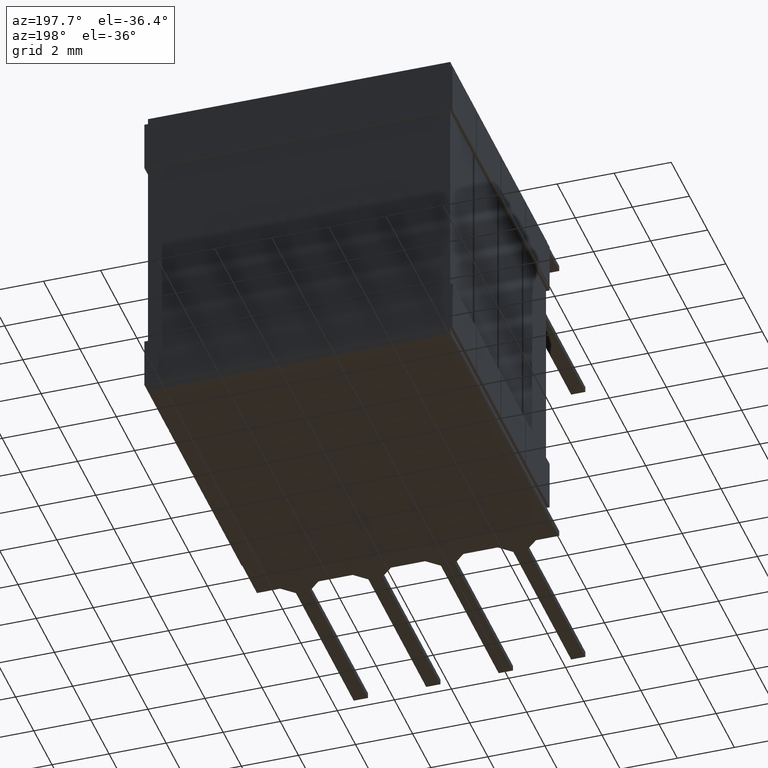
[diagram: clean part render]
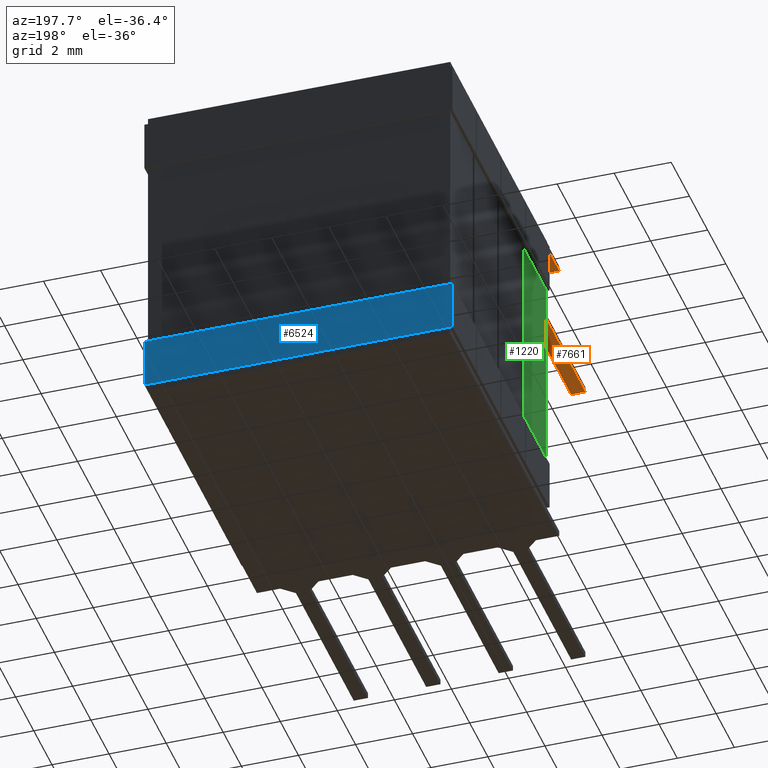
[diagram: same view with three faces highlighted in distinct colors, each labeled with its STEP entity id]
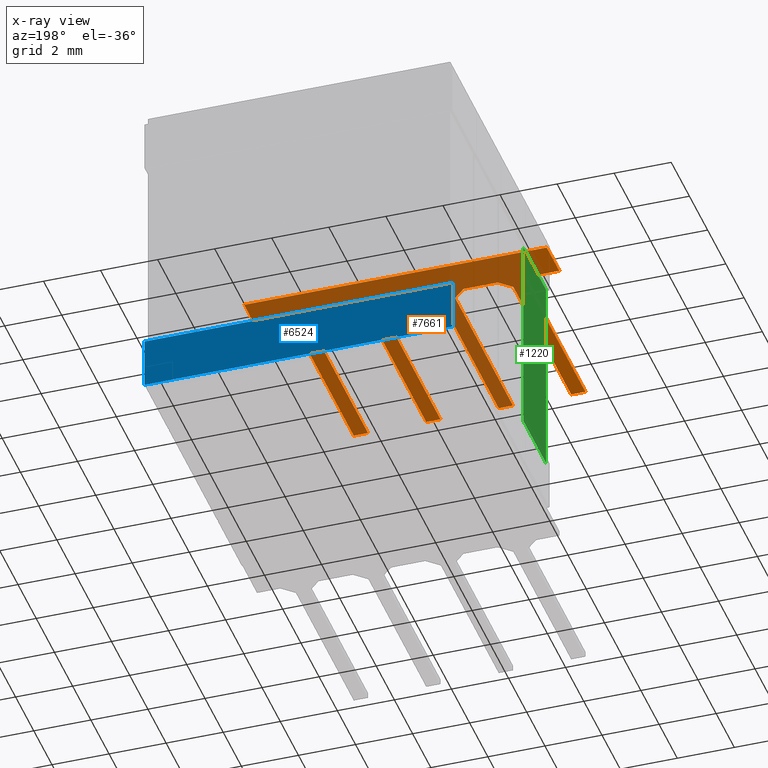
[diagram: x-ray of the same camera — body ghosted, the three highlighted faces saturated]
A machine part, auxiliary view with three faces highlighted in distinct colors.
The next image is the same camera in x-ray (body ghosted, the three faces saturated) — at least one of them is partly hidden behind the body in this view.
Their STEP definitions:

[orange] entity #7661 — the highlighted planar face has unit normal (-0, 0, -1).
#22 = VERTEX_POINT ( 'NONE', #8025 ) ;
#37 = LINE ( 'NONE', #4340, #5190 ) ;
#96 = DIRECTION ( 'NONE',  ( -1.980589795406591000E-014, -1.000000000000000000, 0.0000000000000000000 ) ) ;
#112 = VECTOR ( 'NONE', #3474, 1000.000000000000000 ) ;
#129 = CARTESIAN_POINT ( 'NONE',  ( 3.877499999999909800, -8.102999999999983800, 0.0000000000000000000 ) ) ;
#185 = CARTESIAN_POINT ( 'NONE',  ( 3.457500000000090600, -1.352999999999983300, 0.0000000000000000000 ) ) ;
#242 = EDGE_CURVE ( 'NONE', #5974, #5798, #7825, .T. ) ;
#268 = VECTOR ( 'NONE', #1432, 1000.000000000000000 ) ;
#269 = VERTEX_POINT ( 'NONE', #7627 ) ;
#283 = VECTOR ( 'NONE', #1068, 1000.000000000000000 ) ;
#317 = CARTESIAN_POINT ( 'NONE',  ( 4.377499999999854700, -1.752999999999969500, 0.0000000000000000000 ) ) ;
#366 = CARTESIAN_POINT ( 'NONE',  ( 8.537500000000406400, -1.352999999999983300, 0.0000000000000000000 ) ) ;
#443 = LINE ( 'NONE', #6430, #8243 ) ;
#591 = ORIENTED_EDGE ( 'NONE', *, *, #5850, .F. ) ;
#605 = ORIENTED_EDGE ( 'NONE', *, *, #4857, .F. ) ;
#733 = LINE ( 'NONE', #8004, #7417 ) ;
#740 = DIRECTION ( 'NONE',  ( 1.000000000000000000, -0.0000000000000000000, -0.0000000000000000000 ) ) ;
#785 = ORIENTED_EDGE ( 'NONE', *, *, #1645, .F. ) ;
#909 = CARTESIAN_POINT ( 'NONE',  ( 2.257499999999568200, -1.352999999999987300, 0.0000000000000000000 ) ) ;
#919 = LINE ( 'NONE', #5778, #4052 ) ;
#958 = CARTESIAN_POINT ( 'NONE',  ( 3.877499999999909800, -8.102999999999983800, 0.0000000000000000000 ) ) ;
#1001 = VERTEX_POINT ( 'NONE', #5799 ) ;
#1045 = VECTOR ( 'NONE', #2257, 1000.000000000000000 ) ;
#1068 = DIRECTION ( 'NONE',  ( 1.000000000000000000, 7.632783294298791800E-014, 0.0000000000000000000 ) ) ;
#1106 = VERTEX_POINT ( 'NONE', #4680 ) ;
#1126 = DIRECTION ( 'NONE',  ( -0.0000000000000000000, 0.0000000000000000000, -1.000000000000000000 ) ) ;
#1140 = DIRECTION ( 'NONE',  ( 0.0000000000000000000, 1.000000000000000000, 0.0000000000000000000 ) ) ;
#1142 = DIRECTION ( 'NONE',  ( 1.000000000000000000, 7.632783294298791800E-014, 0.0000000000000000000 ) ) ;
#1144 = DIRECTION ( 'NONE',  ( 0.7241379310342519500, 0.6896551724140355100, -0.0000000000000000000 ) ) ;
#1176 = LINE ( 'NONE', #4503, #6161 ) ;
#1223 = VECTOR ( 'NONE', #2314, 1000.000000000000000 ) ;
#1226 = DIRECTION ( 'NONE',  ( -1.980589795406591000E-014, -1.000000000000000000, 0.0000000000000000000 ) ) ;
#1324 = CARTESIAN_POINT ( 'NONE',  ( 3.877500000000035500, -1.752999999999983200, 0.0000000000000000000 ) ) ;
#1336 = CARTESIAN_POINT ( 'NONE',  ( 3.457500000000090600, -1.352999999999983300, 0.0000000000000000000 ) ) ;
#1342 = VERTEX_POINT ( 'NONE', #3673 ) ;
#1354 = LINE ( 'NONE', #958, #6639 ) ;
#1395 = LINE ( 'NONE', #2544, #4544 ) ;
#1432 = DIRECTION ( 'NONE',  ( -1.980589795406591000E-014, -1.000000000000000000, 0.0000000000000000000 ) ) ;
#1517 = CARTESIAN_POINT ( 'NONE',  ( 4.377499999999854700, -8.102999999999944700, 0.0000000000000000000 ) ) ;
#1537 = ORIENTED_EDGE ( 'NONE', *, *, #5759, .F. ) ;
#1574 = DIRECTION ( 'NONE',  ( 0.7241379310342518400, 0.6896551724140355100, -0.0000000000000000000 ) ) ;
#1582 = DIRECTION ( 'NONE',  ( 0.0000000000000000000, 1.000000000000000000, 0.0000000000000000000 ) ) ;
#1630 = LINE ( 'NONE', #185, #7415 ) ;
#1645 = EDGE_CURVE ( 'NONE', #5122, #1871, #5129, .T. ) ;
#1665 = CARTESIAN_POINT ( 'NONE',  ( 9.457500000000170100, -8.102999999999944700, 0.0000000000000000000 ) ) ;
#1691 = VERTEX_POINT ( 'NONE', #6976 ) ;
#1704 = ORIENTED_EDGE ( 'NONE', *, *, #7572, .F. ) ;
#1746 = LINE ( 'NONE', #3878, #3348 ) ;
#1750 = EDGE_CURVE ( 'NONE', #4129, #5974, #3504, .T. ) ;
#1757 = CARTESIAN_POINT ( 'NONE',  ( 4.797499999999573100, -1.352999999999969600, 0.0000000000000000000 ) ) ;
#1812 = DIRECTION ( 'NONE',  ( -1.000000000000000000, 0.0000000000000000000, 0.0000000000000000000 ) ) ;
#1854 = CARTESIAN_POINT ( 'NONE',  ( 0.09999999999997896700, 10.62000000000000100, 0.0000000000000000000 ) ) ;
#1871 = VERTEX_POINT ( 'NONE', #5124 ) ;
#1872 = CARTESIAN_POINT ( 'NONE',  ( 1.837499999999849600, -8.102999999999962500, 0.0000000000000000000 ) ) ;
#1896 = DIRECTION ( 'NONE',  ( 0.7241379310344374700, -0.6896551724138406700, -0.0000000000000000000 ) ) ;
#1994 = FACE_OUTER_BOUND ( 'NONE', #2192, .T. ) ;
#2032 = LINE ( 'NONE', #4198, #3142 ) ;
#2044 = VERTEX_POINT ( 'NONE', #3501 ) ;
#2069 = LINE ( 'NONE', #3637, #7955 ) ;
#2128 = EDGE_CURVE ( 'NONE', #3108, #7036, #1354, .T. ) ;
#2134 = VECTOR ( 'NONE', #6944, 1000.000000000000000 ) ;
#2147 = VECTOR ( 'NONE', #6991, 1000.000000000000000 ) ;
#2192 = EDGE_LOOP ( 'NONE', ( #6909, #3959, #591, #6535, #7242, #7419, #2974, #3018, #4427, #5818, #1537, #3359, #7890, #3466, #3305, #5090, #7797, #5647, #6228, #3098, #605, #5519, #785, #7149, #7856, #5180, #1704, #7154 ) ) ;
#2249 = LINE ( 'NONE', #1854, #2147 ) ;
#2257 = DIRECTION ( 'NONE',  ( 0.0000000000000000000, 1.000000000000000000, 0.0000000000000000000 ) ) ;
#2306 = DIRECTION ( 'NONE',  ( 1.000000000000000000, 7.632783294298791800E-014, 0.0000000000000000000 ) ) ;
#2314 = DIRECTION ( 'NONE',  ( 1.000000000000000000, -1.156482317317467100E-014, -0.0000000000000000000 ) ) ;
#2496 = VERTEX_POINT ( 'NONE', #5794 ) ;
#2499 = VECTOR ( 'NONE', #1574, 1000.000000000000100 ) ;
#2544 = CARTESIAN_POINT ( 'NONE',  ( 0.9175000000000840300, -1.353000000000000600, 0.0000000000000000000 ) ) ;
#2599 = VECTOR ( 'NONE', #2689, 999.9999999999998900 ) ;
#2683 = DIRECTION ( 'NONE',  ( 0.7241379310344374700, -0.6896551724138406700, -0.0000000000000000000 ) ) ;
#2689 = DIRECTION ( 'NONE',  ( 0.7241379310344385800, -0.6896551724138395600, -0.0000000000000000000 ) ) ;
#2775 = DIRECTION ( 'NONE',  ( 1.000000000000000000, -1.445602896646771400E-014, -0.0000000000000000000 ) ) ;
#2878 = EDGE_CURVE ( 'NONE', #7699, #5122, #37, .T. ) ;
#2902 = CARTESIAN_POINT ( 'NONE',  ( 6.417500000000193200, -1.752999999999983200, 0.0000000000000000000 ) ) ;
#2974 = ORIENTED_EDGE ( 'NONE', *, *, #5095, .F. ) ;
#3018 = ORIENTED_EDGE ( 'NONE', *, *, #3602, .F. ) ;
#3098 = ORIENTED_EDGE ( 'NONE', *, *, #3398, .F. ) ;
#3106 = CARTESIAN_POINT ( 'NONE',  ( 7.337499999999730300, -1.352999999999969600, 0.0000000000000000000 ) ) ;
#3108 = VERTEX_POINT ( 'NONE', #129 ) ;
#3113 = PLANE ( 'NONE',  #5368 ) ;
#3142 = VECTOR ( 'NONE', #4848, 1000.000000000000000 ) ;
#3191 = CARTESIAN_POINT ( 'NONE',  ( 1.337500000000030600, -1.753000000000001000, 0.0000000000000000000 ) ) ;
#3297 = VERTEX_POINT ( 'NONE', #6306 ) ;
#3305 = ORIENTED_EDGE ( 'NONE', *, *, #6751, .F. ) ;
#3335 = LINE ( 'NONE', #5644, #5071 ) ;
#3344 = LINE ( 'NONE', #366, #1223 ) ;
#3348 = VECTOR ( 'NONE', #5170, 1000.000000000000000 ) ;
#3354 = CARTESIAN_POINT ( 'NONE',  ( 6.917500000000012000, -8.102999999999944700, 0.0000000000000000000 ) ) ;
#3359 = ORIENTED_EDGE ( 'NONE', *, *, #3536, .F. ) ;
#3398 = EDGE_CURVE ( 'NONE', #1691, #3108, #7724, .T. ) ;
#3466 = ORIENTED_EDGE ( 'NONE', *, *, #7476, .F. ) ;
#3468 = VERTEX_POINT ( 'NONE', #4558 ) ;
#3472 = CARTESIAN_POINT ( 'NONE',  ( 9.457500000000170100, -1.752999999999969500, 0.0000000000000000000 ) ) ;
#3474 = DIRECTION ( 'NONE',  ( 0.7241379310344374700, -0.6896551724138406700, -0.0000000000000000000 ) ) ;
#3477 = EDGE_CURVE ( 'NONE', #5497, #6760, #7300, .T. ) ;
#3480 = VERTEX_POINT ( 'NONE', #8394 ) ;
#3501 = CARTESIAN_POINT ( 'NONE',  ( 6.417500000000193200, -1.752999999999983200, 0.0000000000000000000 ) ) ;
#3504 = LINE ( 'NONE', #1757, #4810 ) ;
#3536 = EDGE_CURVE ( 'NONE', #3297, #1001, #6097, .T. ) ;
#3602 = EDGE_CURVE ( 'NONE', #3480, #3468, #2032, .T. ) ;
#3637 = CARTESIAN_POINT ( 'NONE',  ( 9.877499999999903600, -1.352999999999955600, 0.0000000000000000000 ) ) ;
#3657 = VECTOR ( 'NONE', #6011, 1000.000000000000000 ) ;
#3673 = CARTESIAN_POINT ( 'NONE',  ( 8.537500000000406400, -1.352999999999983300, 0.0000000000000000000 ) ) ;
#3691 = VERTEX_POINT ( 'NONE', #3472 ) ;
#3769 = EDGE_CURVE ( 'NONE', #7772, #22, #443, .T. ) ;
#3782 = EDGE_CURVE ( 'NONE', #5497, #6805, #2249, .T. ) ;
#3848 = VECTOR ( 'NONE', #1582, 1000.000000000000000 ) ;
#3878 = CARTESIAN_POINT ( 'NONE',  ( 10.69500000000000600, 10.62000000000000100, 0.0000000000000000000 ) ) ;
#3959 = ORIENTED_EDGE ( 'NONE', *, *, #3477, .T. ) ;
#3989 = EDGE_CURVE ( 'NONE', #1106, #2496, #733, .T. ) ;
#4052 = VECTOR ( 'NONE', #7751, 1000.000000000000000 ) ;
#4106 = DIRECTION ( 'NONE',  ( 1.000000000000000000, -4.243971806670481500E-015, 0.0000000000000000000 ) ) ;
#4129 = VERTEX_POINT ( 'NONE', #317 ) ;
#4139 = CARTESIAN_POINT ( 'NONE',  ( 0.09999999999999760500, 0.02500000000000000100, 0.0000000000000000000 ) ) ;
#4178 = CARTESIAN_POINT ( 'NONE',  ( 0.1000000000000000100, -1.352999999999990200, 0.0000000000000000000 ) ) ;
#4198 = CARTESIAN_POINT ( 'NONE',  ( 8.957500000000351300, -1.752999999999983200, 0.0000000000000000000 ) ) ;
#4234 = LINE ( 'NONE', #7393, #3848 ) ;
#4302 = CARTESIAN_POINT ( 'NONE',  ( 6.417500000000067000, -8.102999999999983800, 0.0000000000000000000 ) ) ;
#4340 = CARTESIAN_POINT ( 'NONE',  ( 1.837499999999849600, -8.102999999999962500, 0.0000000000000000000 ) ) ;
#4374 = LINE ( 'NONE', #6603, #5273 ) ;
#4384 = CARTESIAN_POINT ( 'NONE',  ( 5.997500000000248300, -1.352999999999983300, 0.0000000000000000000 ) ) ;
#4427 = ORIENTED_EDGE ( 'NONE', *, *, #7449, .F. ) ;
#4434 = CARTESIAN_POINT ( 'NONE',  ( 4.797499999999573100, -1.352999999999969600, 0.0000000000000000000 ) ) ;
#4503 = CARTESIAN_POINT ( 'NONE',  ( 8.957500000000351300, -1.752999999999983200, 0.0000000000000000000 ) ) ;
#4544 = VECTOR ( 'NONE', #8336, 1000.000000000000000 ) ;
#4558 = CARTESIAN_POINT ( 'NONE',  ( 8.957500000000225200, -8.102999999999983800, 0.0000000000000000000 ) ) ;
#4591 = EDGE_CURVE ( 'NONE', #4901, #1342, #3344, .T. ) ;
#4680 = CARTESIAN_POINT ( 'NONE',  ( 9.877499999999903600, -1.352999999999955600, 0.0000000000000000000 ) ) ;
#4693 = LINE ( 'NONE', #1665, #1045 ) ;
#4810 = VECTOR ( 'NONE', #4916, 1000.000000000000100 ) ;
#4848 = DIRECTION ( 'NONE',  ( -1.966930555438269700E-014, -1.000000000000000000, 0.0000000000000000000 ) ) ;
#4857 = EDGE_CURVE ( 'NONE', #6103, #1691, #4374, .T. ) ;
#4901 = VERTEX_POINT ( 'NONE', #7266 ) ;
#4916 = DIRECTION ( 'NONE',  ( 0.7241379310342518400, 0.6896551724140355100, -0.0000000000000000000 ) ) ;
#4934 = CARTESIAN_POINT ( 'NONE',  ( 6.417500000000067000, -8.102999999999983800, 0.0000000000000000000 ) ) ;
#5071 = VECTOR ( 'NONE', #1142, 1000.000000000000000 ) ;
#5090 = ORIENTED_EDGE ( 'NONE', *, *, #242, .F. ) ;
#5095 = EDGE_CURVE ( 'NONE', #3468, #269, #3335, .T. ) ;
#5122 = VERTEX_POINT ( 'NONE', #8328 ) ;
#5124 = CARTESIAN_POINT ( 'NONE',  ( 2.257499999999568200, -1.352999999999987300, 0.0000000000000000000 ) ) ;
#5129 = LINE ( 'NONE', #909, #2499 ) ;
#5170 = DIRECTION ( 'NONE',  ( -1.303976554229626400E-015, 1.000000000000000000, -0.0000000000000000000 ) ) ;
#5180 = ORIENTED_EDGE ( 'NONE', *, *, #3769, .F. ) ;
#5190 = VECTOR ( 'NONE', #1140, 1000.000000000000000 ) ;
#5233 = CARTESIAN_POINT ( 'NONE',  ( 0.0000000000000000000, 0.02500000000000000100, 0.0000000000000000000 ) ) ;
#5250 = CARTESIAN_POINT ( 'NONE',  ( 1.337500000000030600, -1.753000000000001000, 0.0000000000000000000 ) ) ;
#5273 = VECTOR ( 'NONE', #2683, 1000.000000000000000 ) ;
#5281 = LINE ( 'NONE', #3106, #5689 ) ;
#5368 = AXIS2_PLACEMENT_3D ( 'NONE', #5739, #1126, #1812 ) ;
#5497 = VERTEX_POINT ( 'NONE', #4139 ) ;
#5519 = ORIENTED_EDGE ( 'NONE', *, *, #6261, .F. ) ;
#5564 = EDGE_CURVE ( 'NONE', #7036, #4129, #4234, .T. ) ;
#5626 = CARTESIAN_POINT ( 'NONE',  ( 5.997500000000248300, -1.352999999999983300, 0.0000000000000000000 ) ) ;
#5644 = CARTESIAN_POINT ( 'NONE',  ( 8.957500000000225200, -8.102999999999983800, 0.0000000000000000000 ) ) ;
#5647 = ORIENTED_EDGE ( 'NONE', *, *, #5564, .F. ) ;
#5689 = VECTOR ( 'NONE', #7624, 1000.000000000000100 ) ;
#5711 = EDGE_CURVE ( 'NONE', #6805, #6778, #1395, .T. ) ;
#5739 = CARTESIAN_POINT ( 'NONE',  ( 0.0000000000000000000, 0.0000000000000000000, 0.0000000000000000000 ) ) ;
#5759 = EDGE_CURVE ( 'NONE', #1001, #4901, #5281, .T. ) ;
#5778 = CARTESIAN_POINT ( 'NONE',  ( 1.337499999999904700, -8.103000000000001500, 0.0000000000000000000 ) ) ;
#5794 = CARTESIAN_POINT ( 'NONE',  ( 10.69500000000002000, -1.352999999999959100, 0.0000000000000000000 ) ) ;
#5798 = VERTEX_POINT ( 'NONE', #4384 ) ;
#5799 = CARTESIAN_POINT ( 'NONE',  ( 6.917500000000012000, -1.752999999999969500, 0.0000000000000000000 ) ) ;
#5818 = ORIENTED_EDGE ( 'NONE', *, *, #4591, .F. ) ;
#5836 = LINE ( 'NONE', #7829, #268 ) ;
#5850 = EDGE_CURVE ( 'NONE', #2496, #6760, #1746, .T. ) ;
#5879 = VECTOR ( 'NONE', #96, 1000.000000000000000 ) ;
#5974 = VERTEX_POINT ( 'NONE', #4434 ) ;
#6011 = DIRECTION ( 'NONE',  ( 0.0000000000000000000, 1.000000000000000000, 0.0000000000000000000 ) ) ;
#6093 = LINE ( 'NONE', #2902, #112 ) ;
#6097 = LINE ( 'NONE', #3354, #3657 ) ;
#6103 = VERTEX_POINT ( 'NONE', #1336 ) ;
#6161 = VECTOR ( 'NONE', #1896, 1000.000000000000000 ) ;
#6228 = ORIENTED_EDGE ( 'NONE', *, *, #2128, .F. ) ;
#6261 = EDGE_CURVE ( 'NONE', #1871, #6103, #1630, .T. ) ;
#6306 = CARTESIAN_POINT ( 'NONE',  ( 6.917500000000012000, -8.102999999999944700, 0.0000000000000000000 ) ) ;
#6430 = CARTESIAN_POINT ( 'NONE',  ( 1.337500000000030600, -1.753000000000001000, 0.0000000000000000000 ) ) ;
#6535 = ORIENTED_EDGE ( 'NONE', *, *, #3989, .F. ) ;
#6597 = EDGE_CURVE ( 'NONE', #22, #7699, #919, .T. ) ;
#6603 = CARTESIAN_POINT ( 'NONE',  ( 3.877500000000035500, -1.752999999999983200, 0.0000000000000000000 ) ) ;
#6639 = VECTOR ( 'NONE', #2306, 1000.000000000000000 ) ;
#6663 = LINE ( 'NONE', #5250, #2599 ) ;
#6685 = CARTESIAN_POINT ( 'NONE',  ( 0.9175000000000840300, -1.353000000000000600, 0.0000000000000000000 ) ) ;
#6751 = EDGE_CURVE ( 'NONE', #5798, #2044, #6093, .T. ) ;
#6760 = VERTEX_POINT ( 'NONE', #7248 ) ;
#6778 = VERTEX_POINT ( 'NONE', #6685 ) ;
#6805 = VERTEX_POINT ( 'NONE', #4178 ) ;
#6875 = LINE ( 'NONE', #4302, #283 ) ;
#6909 = ORIENTED_EDGE ( 'NONE', *, *, #3782, .F. ) ;
#6944 = DIRECTION ( 'NONE',  ( 1.000000000000000000, -2.312964634634830700E-014, -0.0000000000000000000 ) ) ;
#6957 = VERTEX_POINT ( 'NONE', #4934 ) ;
#6976 = CARTESIAN_POINT ( 'NONE',  ( 3.877500000000035500, -1.752999999999983200, 0.0000000000000000000 ) ) ;
#6991 = DIRECTION ( 'NONE',  ( 1.756746191114908800E-015, -1.000000000000000000, 0.0000000000000000000 ) ) ;
#7036 = VERTEX_POINT ( 'NONE', #1517 ) ;
#7149 = ORIENTED_EDGE ( 'NONE', *, *, #2878, .F. ) ;
#7154 = ORIENTED_EDGE ( 'NONE', *, *, #5711, .F. ) ;
#7187 = EDGE_CURVE ( 'NONE', #6957, #3297, #6875, .T. ) ;
#7242 = ORIENTED_EDGE ( 'NONE', *, *, #8339, .F. ) ;
#7248 = CARTESIAN_POINT ( 'NONE',  ( 10.69500000000001800, 0.02500000000000000100, 0.0000000000000000000 ) ) ;
#7266 = CARTESIAN_POINT ( 'NONE',  ( 7.337499999999730300, -1.352999999999969600, 0.0000000000000000000 ) ) ;
#7300 = LINE ( 'NONE', #5233, #8225 ) ;
#7393 = CARTESIAN_POINT ( 'NONE',  ( 4.377499999999854700, -8.102999999999944700, 0.0000000000000000000 ) ) ;
#7415 = VECTOR ( 'NONE', #2775, 1000.000000000000000 ) ;
#7417 = VECTOR ( 'NONE', #4106, 1000.000000000000000 ) ;
#7419 = ORIENTED_EDGE ( 'NONE', *, *, #8312, .F. ) ;
#7449 = EDGE_CURVE ( 'NONE', #1342, #3480, #1176, .T. ) ;
#7476 = EDGE_CURVE ( 'NONE', #2044, #6957, #5836, .T. ) ;
#7572 = EDGE_CURVE ( 'NONE', #6778, #7772, #6663, .T. ) ;
#7624 = DIRECTION ( 'NONE',  ( 0.7241379310342518400, 0.6896551724140355100, -0.0000000000000000000 ) ) ;
#7627 = CARTESIAN_POINT ( 'NONE',  ( 9.457500000000170100, -8.102999999999944700, 0.0000000000000000000 ) ) ;
#7661 = ADVANCED_FACE ( 'NONE', ( #1994 ), #3113, .T. ) ;
#7699 = VERTEX_POINT ( 'NONE', #1872 ) ;
#7724 = LINE ( 'NONE', #1324, #5879 ) ;
#7751 = DIRECTION ( 'NONE',  ( 1.000000000000000000, 7.632783294298791800E-014, 0.0000000000000000000 ) ) ;
#7772 = VERTEX_POINT ( 'NONE', #3191 ) ;
#7797 = ORIENTED_EDGE ( 'NONE', *, *, #1750, .F. ) ;
#7825 = LINE ( 'NONE', #5626, #2134 ) ;
#7829 = CARTESIAN_POINT ( 'NONE',  ( 6.417500000000193200, -1.752999999999983200, 0.0000000000000000000 ) ) ;
#7856 = ORIENTED_EDGE ( 'NONE', *, *, #6597, .F. ) ;
#7890 = ORIENTED_EDGE ( 'NONE', *, *, #7187, .F. ) ;
#7955 = VECTOR ( 'NONE', #1144, 999.9999999999998900 ) ;
#8004 = CARTESIAN_POINT ( 'NONE',  ( 9.877499999999903600, -1.352999999999955600, 0.0000000000000000000 ) ) ;
#8025 = CARTESIAN_POINT ( 'NONE',  ( 1.337499999999904700, -8.103000000000001500, 0.0000000000000000000 ) ) ;
#8225 = VECTOR ( 'NONE', #740, 1000.000000000000000 ) ;
#8243 = VECTOR ( 'NONE', #1226, 1000.000000000000000 ) ;
#8312 = EDGE_CURVE ( 'NONE', #269, #3691, #4693, .T. ) ;
#8328 = CARTESIAN_POINT ( 'NONE',  ( 1.837499999999849600, -1.752999999999987200, 0.0000000000000000000 ) ) ;
#8336 = DIRECTION ( 'NONE',  ( 1.000000000000000000, -1.273191542001195500E-014, -0.0000000000000000000 ) ) ;
#8339 = EDGE_CURVE ( 'NONE', #3691, #1106, #2069, .T. ) ;
#8394 = CARTESIAN_POINT ( 'NONE',  ( 8.957500000000351300, -1.752999999999983200, 0.0000000000000000000 ) ) ;

[blue] entity #6524 — the highlighted planar face has unit normal (0, -1, 0).
#636 = EDGE_CURVE ( 'NONE', #4278, #3919, #2539, .T. ) ;
#1367 = EDGE_CURVE ( 'NONE', #4332, #5521, #5066, .T. ) ;
#1717 = VECTOR ( 'NONE', #5492, 1000.000000000000000 ) ;
#1723 = VECTOR ( 'NONE', #3764, 1000.000000000000000 ) ;
#1725 = CARTESIAN_POINT ( 'NONE',  ( 0.0000000000000000000, 10.69504084188069500, -8.995000000463351200 ) ) ;
#1972 = CARTESIAN_POINT ( 'NONE',  ( 10.79500000000000000, 10.69504084188069500, -8.995000000463351200 ) ) ;
#1988 = AXIS2_PLACEMENT_3D ( 'NONE', #8396, #7804, #8374 ) ;
#2237 = LINE ( 'NONE', #4833, #5277 ) ;
#2539 = LINE ( 'NONE', #3487, #1717 ) ;
#2697 = DIRECTION ( 'NONE',  ( 0.0000000000000000000, -2.268993371951541100E-005, -0.9999999997425834700 ) ) ;
#2860 = DIRECTION ( 'NONE',  ( 0.0000000000000000000, -2.268993371951541100E-005, -0.9999999997425834700 ) ) ;
#3105 = CARTESIAN_POINT ( 'NONE',  ( 0.0000000000000000000, 10.69504084188069500, -8.995000000463351200 ) ) ;
#3277 = PLANE ( 'NONE',  #1988 ) ;
#3487 = CARTESIAN_POINT ( 'NONE',  ( 0.0000000000000000000, 10.69500000000000000, -10.79500000000000000 ) ) ;
#3764 = DIRECTION ( 'NONE',  ( 1.000000000000000000, -0.0000000000000000000, -0.0000000000000000000 ) ) ;
#3919 = VERTEX_POINT ( 'NONE', #7870 ) ;
#4000 = ORIENTED_EDGE ( 'NONE', *, *, #6185, .T. ) ;
#4125 = ORIENTED_EDGE ( 'NONE', *, *, #1367, .T. ) ;
#4135 = EDGE_CURVE ( 'NONE', #4332, #4278, #2237, .T. ) ;
#4278 = VERTEX_POINT ( 'NONE', #4977 ) ;
#4332 = VERTEX_POINT ( 'NONE', #1725 ) ;
#4487 = ORIENTED_EDGE ( 'NONE', *, *, #4135, .F. ) ;
#4833 = CARTESIAN_POINT ( 'NONE',  ( 0.0000000000000000000, 10.69504084188069500, -8.995000000463351200 ) ) ;
#4977 = CARTESIAN_POINT ( 'NONE',  ( 0.0000000000000000000, 10.69500000000000000, -10.79500000000000000 ) ) ;
#5066 = LINE ( 'NONE', #3105, #1723 ) ;
#5175 = FACE_OUTER_BOUND ( 'NONE', #7400, .T. ) ;
#5277 = VECTOR ( 'NONE', #2860, 1000.000000000000100 ) ;
#5492 = DIRECTION ( 'NONE',  ( 1.000000000000000000, -0.0000000000000000000, -0.0000000000000000000 ) ) ;
#5521 = VERTEX_POINT ( 'NONE', #6193 ) ;
#6185 = EDGE_CURVE ( 'NONE', #5521, #3919, #8011, .T. ) ;
#6193 = CARTESIAN_POINT ( 'NONE',  ( 10.79500000000000000, 10.69504084188069500, -8.995000000463351200 ) ) ;
#6524 = ADVANCED_FACE ( 'NONE', ( #5175 ), #3277, .F. ) ;
#7071 = ORIENTED_EDGE ( 'NONE', *, *, #636, .F. ) ;
#7400 = EDGE_LOOP ( 'NONE', ( #4000, #7071, #4487, #4125 ) ) ;
#7644 = VECTOR ( 'NONE', #2697, 1000.000000000000100 ) ;
#7804 = DIRECTION ( 'NONE',  ( 0.0000000000000000000, -0.9999999997425834700, 2.268993371951541100E-005 ) ) ;
#7870 = CARTESIAN_POINT ( 'NONE',  ( 10.79500000000000000, 10.69500000000000000, -10.79500000000000000 ) ) ;
#8011 = LINE ( 'NONE', #1972, #7644 ) ;
#8374 = DIRECTION ( 'NONE',  ( 0.0000000000000000000, -2.268993371951541100E-005, -0.9999999997425834700 ) ) ;
#8396 = CARTESIAN_POINT ( 'NONE',  ( 0.0000000000000000000, 10.69504084188069500, -8.995000000463351200 ) ) ;

[green] entity #1220 — the highlighted planar face has unit normal (-1, 0, 0).
#86 = VERTEX_POINT ( 'NONE', #1038 ) ;
#216 = VECTOR ( 'NONE', #654, 1000.000000000000000 ) ;
#355 = ORIENTED_EDGE ( 'NONE', *, *, #2235, .F. ) ;
#420 = LINE ( 'NONE', #3970, #2943 ) ;
#499 = VERTEX_POINT ( 'NONE', #6959 ) ;
#548 = DIRECTION ( 'NONE',  ( 0.0000000000000000000, 1.000000000000000000, 1.648976688190881000E-016 ) ) ;
#630 = DIRECTION ( 'NONE',  ( -0.0000000000000000000, -1.000000000000000000, -1.236732516143160800E-016 ) ) ;
#654 = DIRECTION ( 'NONE',  ( 0.0000000000000000000, 3.616867737183134300E-016, -1.000000000000000000 ) ) ;
#1038 = CARTESIAN_POINT ( 'NONE',  ( 0.09999999999998265800, 2.572500000000002000, -8.995000000000001000 ) ) ;
#1147 = EDGE_CURVE ( 'NONE', #6627, #1772, #1415, .T. ) ;
#1220 = ADVANCED_FACE ( 'NONE', ( #7721 ), #1590, .T. ) ;
#1243 = CARTESIAN_POINT ( 'NONE',  ( 0.09999999999998265800, 0.0000000000000000000, 0.0000000000000000000 ) ) ;
#1415 = LINE ( 'NONE', #2894, #8129 ) ;
#1457 = CARTESIAN_POINT ( 'NONE',  ( 0.09999999999998265800, 2.647499999999997700, -1.799999998505076100 ) ) ;
#1590 = PLANE ( 'NONE',  #4242 ) ;
#1702 = LINE ( 'NONE', #4160, #4734 ) ;
#1772 = VERTEX_POINT ( 'NONE', #2402 ) ;
#1900 = DIRECTION ( 'NONE',  ( -1.000000000000000000, 0.0000000000000000000, 0.0000000000000000000 ) ) ;
#1932 = EDGE_LOOP ( 'NONE', ( #3493, #1996, #355, #5138, #6473, #2182 ) ) ;
#1996 = ORIENTED_EDGE ( 'NONE', *, *, #7741, .F. ) ;
#2117 = VERTEX_POINT ( 'NONE', #4656 ) ;
#2182 = ORIENTED_EDGE ( 'NONE', *, *, #7125, .T. ) ;
#2235 = EDGE_CURVE ( 'NONE', #499, #2117, #4405, .T. ) ;
#2330 = CARTESIAN_POINT ( 'NONE',  ( 0.09999999999998265800, 0.09999999999999872900, -1.799999998505077400 ) ) ;
#2402 = CARTESIAN_POINT ( 'NONE',  ( 0.09999999999998265800, 2.647499999999997700, -1.800694310536910600 ) ) ;
#2894 = CARTESIAN_POINT ( 'NONE',  ( 0.09999999999998265800, 2.647499999999997700, -1.800694310536910600 ) ) ;
#2943 = VECTOR ( 'NONE', #630, 1000.000000000000000 ) ;
#3100 = VECTOR ( 'NONE', #548, 1000.000000000000000 ) ;
#3372 = EDGE_CURVE ( 'NONE', #7633, #86, #6203, .T. ) ;
#3420 = EDGE_CURVE ( 'NONE', #6627, #499, #420, .T. ) ;
#3493 = ORIENTED_EDGE ( 'NONE', *, *, #3372, .T. ) ;
#3575 = DIRECTION ( 'NONE',  ( 0.0000000000000000000, 0.0000000000000000000, -1.000000000000000000 ) ) ;
#3970 = CARTESIAN_POINT ( 'NONE',  ( 0.09999999999998265800, 10.62000000000000100, -1.799999998505076100 ) ) ;
#4160 = CARTESIAN_POINT ( 'NONE',  ( 0.09999999999998265800, 2.572499999999999300, -1.800694310536910600 ) ) ;
#4242 = AXIS2_PLACEMENT_3D ( 'NONE', #1243, #1900, #7833 ) ;
#4405 = LINE ( 'NONE', #2330, #7668 ) ;
#4656 = CARTESIAN_POINT ( 'NONE',  ( 0.09999999999998265800, 0.09999999999999874300, -8.995000000000001000 ) ) ;
#4734 = VECTOR ( 'NONE', #5538, 1000.000000000000000 ) ;
#5035 = CARTESIAN_POINT ( 'NONE',  ( 0.09999999999998265800, 10.62000000000000100, -8.994999999999999200 ) ) ;
#5138 = ORIENTED_EDGE ( 'NONE', *, *, #3420, .F. ) ;
#5538 = DIRECTION ( 'NONE',  ( 0.0000000000000000000, -1.000000000000000000, 0.0000000000000000000 ) ) ;
#6203 = LINE ( 'NONE', #8372, #216 ) ;
#6473 = ORIENTED_EDGE ( 'NONE', *, *, #1147, .T. ) ;
#6627 = VERTEX_POINT ( 'NONE', #1457 ) ;
#6828 = DIRECTION ( 'NONE',  ( 0.0000000000000000000, 1.883603495935088700E-018, -1.000000000000000000 ) ) ;
#6959 = CARTESIAN_POINT ( 'NONE',  ( 0.09999999999998265800, 0.09999999999999872900, -1.799999998505077400 ) ) ;
#7125 = EDGE_CURVE ( 'NONE', #1772, #7633, #1702, .T. ) ;
#7252 = LINE ( 'NONE', #5035, #3100 ) ;
#7633 = VERTEX_POINT ( 'NONE', #7942 ) ;
#7668 = VECTOR ( 'NONE', #6828, 1000.000000000000000 ) ;
#7721 = FACE_OUTER_BOUND ( 'NONE', #1932, .T. ) ;
#7741 = EDGE_CURVE ( 'NONE', #2117, #86, #7252, .T. ) ;
#7833 = DIRECTION ( 'NONE',  ( 0.0000000000000000000, 0.0000000000000000000, -1.000000000000000000 ) ) ;
#7942 = CARTESIAN_POINT ( 'NONE',  ( 0.09999999999998265800, 2.572499999999999300, -1.800694310536910600 ) ) ;
#8129 = VECTOR ( 'NONE', #3575, 1000.000000000000000 ) ;
#8372 = CARTESIAN_POINT ( 'NONE',  ( 0.09999999999998265800, 2.572500000000002000, -8.994999999999999200 ) ) ;